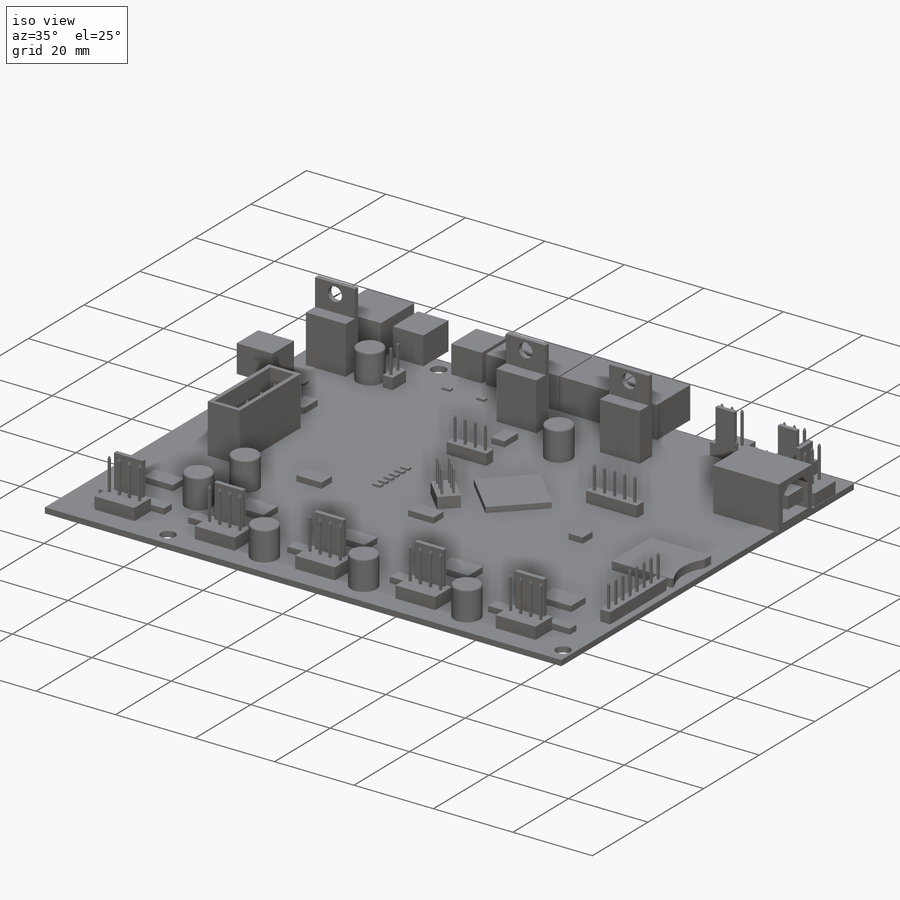
[diagram: iso view]
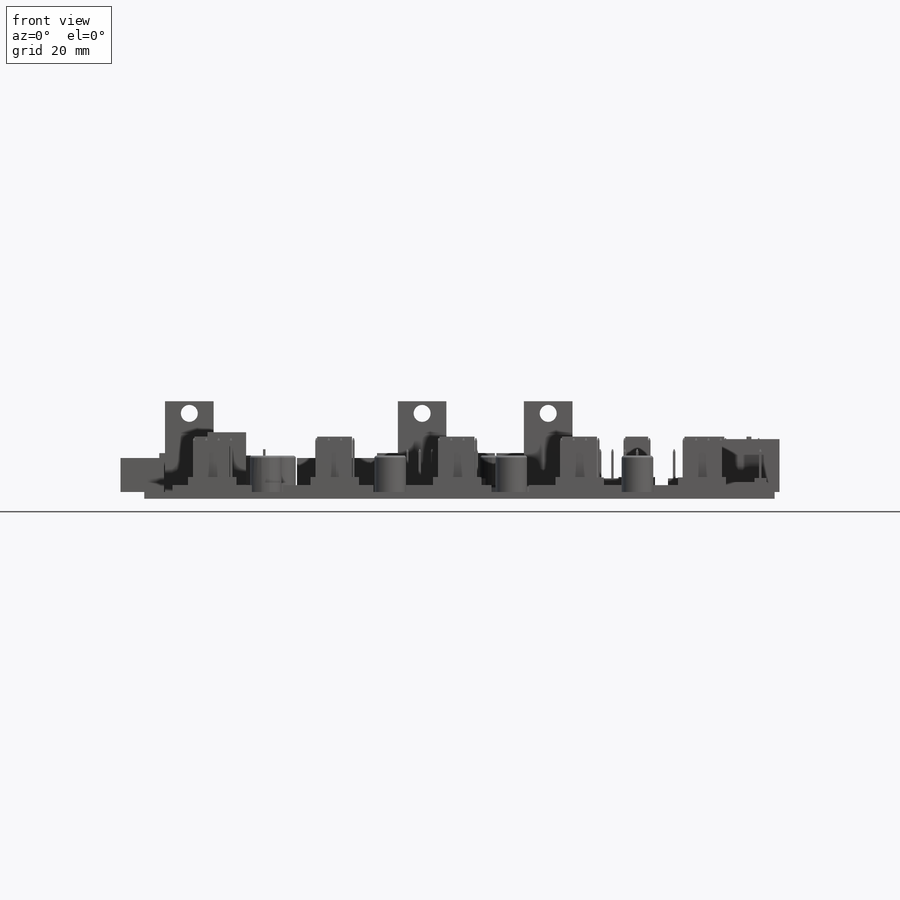
[diagram: front view]
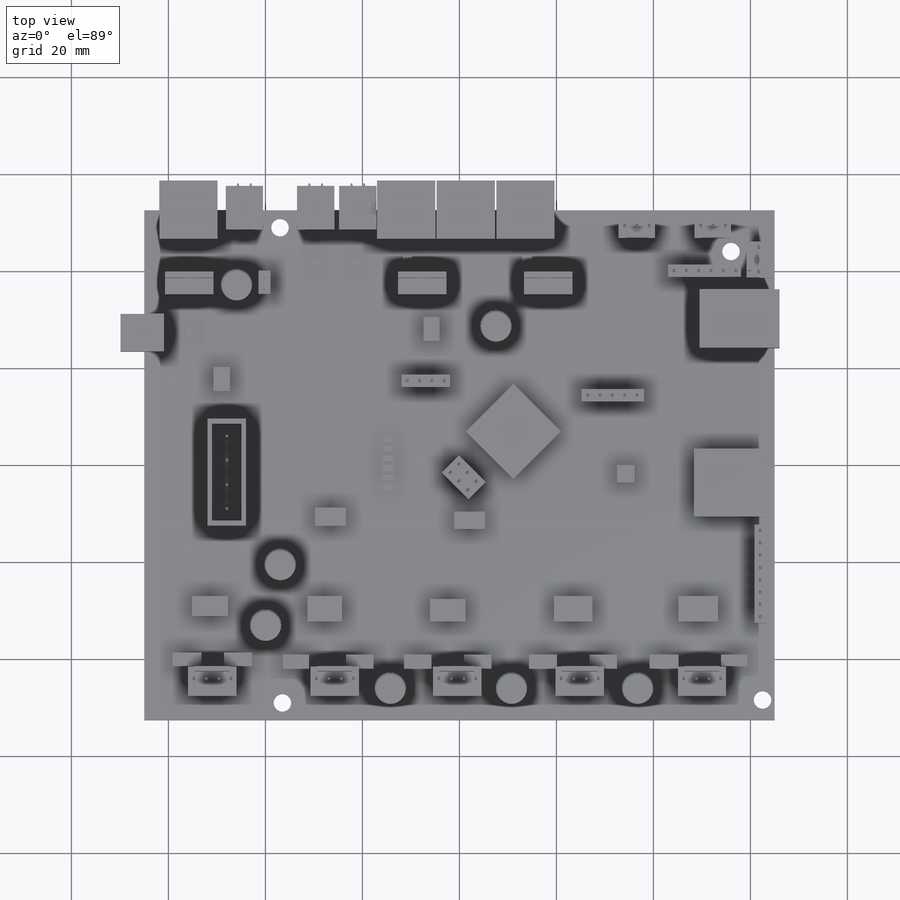
[diagram: top view]
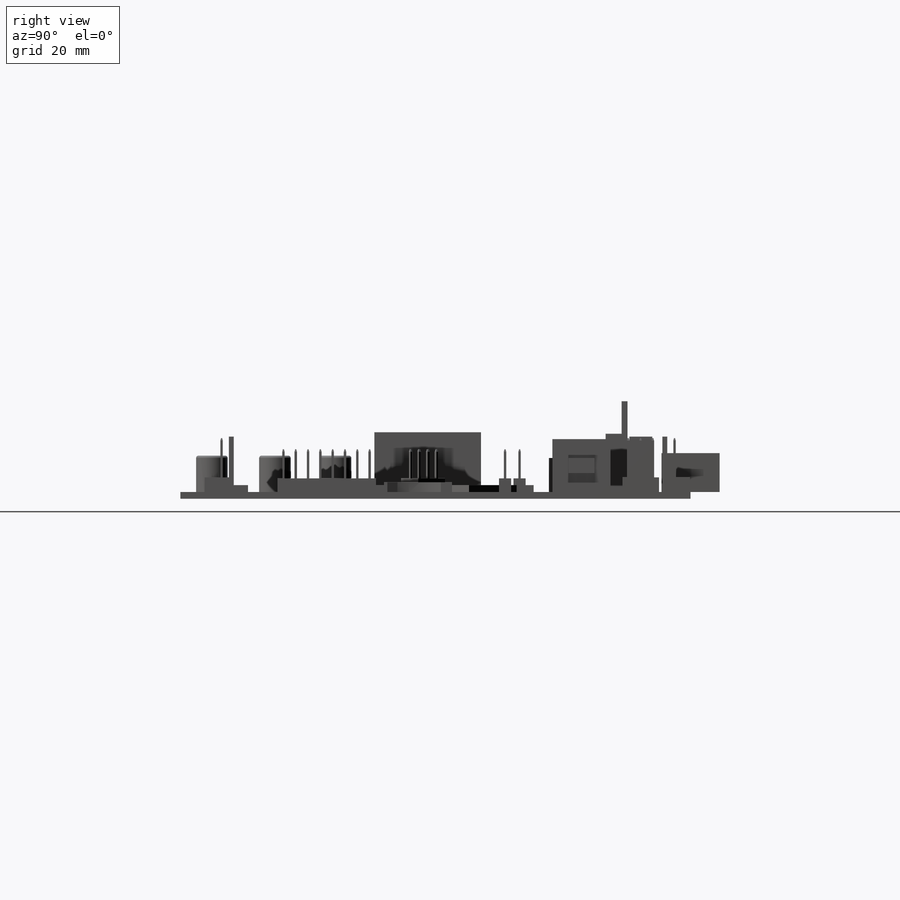
[diagram: right view]
SOLIDWORKS PART (.sldprt)
format: sldprt  version: not decoded by parser v0  size: 2,348,032 bytes
history: native  units: mm
features: sketch x26, extrude x19, cut_extrude x7, plane x3, fillet x2, chamfer x2, material x1 (+10 scaffold rows collapsed)
feature tree (70):
  scaffold x10  (default folders/planes/origin — collapsed)
  material  "Matériau <non spécifié>"
  plane  "Ebene vorne"
  plane  "Ebene oben"
  plane  "Ebene rechts"
  sketch  "Skizze1"  dims[D1=105.2mm D2=130.0mm]
  extrude  "Aufsatz-Linear austragen1"  Depth=1.4mm
  sketch  "Skizze2"
  extrude  "Aufsatz-Linear austragen2"  Depth=1.4mm
  sketch  "Skizze3"  dims[D1=6.5mm D2=6.5mm D3=6.5mm D4=6.5mm D5=6.5mm D6=6.5mm D7=6.5mm D8=28.3mm D9=26.0mm D10=25.0mm D11=25.0mm D12=3.0mm D13=12.5mm D14=19.5mm D15=6.5mm D16=6.5mm D17=6.5mm D18=15.5mm D19=24.0mm D20=19.0mm D21=57.5mm]
  extrude  "Aufsatz-Linear austragen3"  Depth=7.5mm
  fillet  "Verrundung1"  Radius=0.5mm
  sketch  "Skizze4"  dims[D1=4.5mm D2=10.0mm D3=4.3mm D4=13.0mm D5=38.0mm D6=16.0mm]
  extrude  "Aufsatz-Linear austragen4"  Depth=12mm
  sketch  "Skizze5"  dims[D1=1.2mm D2=1.2mm D3=1.2mm D4=0.01mm D5=0.01mm D6=0.01mm D7=0.01mm D8=0.01mm D9=0.01mm]
  extrude  "Aufsatz-Linear austragen5"  Depth=6.7mm
  sketch  "Skizze6"  dims[D1=3.5mm D2=3.5mm D3=3.5mm D4=2.5mm D5=2.5mm D6=2.5mm]
  cut_extrude  "Schnitt-Linear austragen1"  Depth=6.7mm
  sketch  "Skizze7"  dims[D1=8.0mm D2=22.0mm D3=13.0mm D4=40.0mm]
  extrude  "Aufsatz-Linear austragen6"  Depth=12.3mm
  sketch  "Skizze8"  dims[c1.D1=3.6mm c1.D2=3.6mm c1.D3=3.6mm c1.D4=3.6mm c1.D5=92.5mm c1.D6=93.0mm c1.D7=98.0mm c1.D8=99.0mm c1.D9=28.0mm c1.D10=~28.312266mm c2.D9=28.0mm c2.D10=3.6mm c2.D11=8.5mm c2.D12=2.5mm]
  cut_extrude  "Schnitt-Linear austragen2"  Depth=12.3mm
  sketch  "Skizze9"  dims[c1.D1=12.0mm c1.D2=12.0mm c1.D3=6.0mm c1.D4=3.1mm c1.D5=12.0mm c1.D6=12.0mm c1.D7=12.0mm c2.D7=270.0deg c3.D7=6.0mm c3.D8=48.0mm c3.D9=3.0]
  extrude  "Aufsatz-Linear austragen7"  Depth=8mm
  sketch  "Skizze10"  dims[D1=7.7mm D2=9.0mm D3=4.9mm D4=0.1mm D5=1.0mm D6=7.7mm D7=7.0mm D8=7.7mm D9=7.7mm D10=9.0mm D11=4.9mm D12=21.5mm]
  extrude  "Aufsatz-Linear austragen8"  Depth=7mm
  sketch  "Skizze11"  dims[D1=1.0mm D2=1.0mm D3=1.0mm D4=1.0mm D5=1.0mm D6=1.0mm D7=1.0mm]
  cut_extrude  "Schnitt-Linear austragen3"  Depth=7mm
  sketch  "Skizze12"  dims[D1=1.0mm]
  cut_extrude  "Schnitt-Linear austragen4"  Depth=7mm
  sketch  "Skizze13"  dims[D1=1.0mm]
  cut_extrude  "Schnitt-Linear austragen5"  Depth=11mm
  sketch  "Skizze14"  dims[D1=10.0mm D2=6.0mm D3=5.0mm D4=9.0mm D6=10.0mm D7=5.7mm D8=5.7mm D9=5.7mm D10=7.5mm D11=7.5mm D12=7.5mm D13=0.1mm D14=0.1mm D15=0.1mm D16=9.0mm D17=8.2mm D18=6.5mm D5=5.0]
  extrude  "Aufsatz-Linear austragen9"  Depth=3mm
  sketch  "Skizze15"  dims[D1=2.5mm D2=20.3mm D3=1.7mm D4=20.0mm D5=15.0mm D6=2.5mm D7=11.3mm D8=22.0mm D9=12.8mm D10=2.5mm D11=27.0mm D12=37.0mm D13=2.5mm D14=10.0mm D15=34.0mm D16=53.0mm D17=2.5mm D18=4.8mm D19=23.5mm D20=12.5mm D21=5.0mm D22=7.8mm D23=2.5mm D24=4.5mm]
  extrude  "Aufsatz-Linear austragen10"  Depth=2.8mm
  sketch  "Skizze16"  dims[c1.D1=7.2mm c1.D2=1.0mm c1.D4=25.0mm c1.D3=7.2mm c2.D4=1.0mm c2.D5=7.2mm c2.D6=7.2mm c2.D7=7.2mm c2.D8=1.0mm c2.D9=1.0mm c2.D10=1.0mm c2.D11=1.0mm c2.D12=1.0mm c2.D13=1.0mm c2.D14=4.7mm c2.D15=4.7mm c2.D16=4.7mm c2.D17=12.0mm c2.D18=16.5mm c2.D19=1.0mm c2.D20=16.5mm]
  extrude  "Aufsatz-Linear austragen11"  Depth=8.4mm
  sketch  "Skizze17"  dims[D1=12.0mm D2=16.5mm D3=1.0mm D4=16.5mm]
  extrude  "Aufsatz-Linear austragen12"  Depth=10.9mm
  sketch  "Skizze18"  dims[D5=20.0mm D1=14.0mm D2=15.2mm D3=1.5mm D4=42.0mm]
  extrude  "Aufsatz-Linear austragen13"  Depth=2mm
  sketch  "Skizze19"  dims[D1=0.5mm D2=0.5mm D3=1.0mm D4=0.5mm D5=0.5mm D7=2.54mm D8=1.27mm D9=0.5mm D10=0.5mm D11=1.27mm D13=2.54mm D14=0.5mm D15=0.5mm D16=1.27mm D18=2.54mm D19=0.5mm D20=0.5mm D21=1.27mm D23=2.54mm D24=0.5mm D25=0.5mm D26=1.27mm D27=1.27mm D29=2.54mm D6=4.0 D12=5.0 D17=6.0 D22=8.0 D28=3.0]
  extrude  "Aufsatz-Linear austragen14"  Depth=6mm
  sketch  "Skizze20"  dims[c1.D1=0.5mm c1.D2=0.5mm c1.D3=2.5mm c1.D5=2.54mm c1.D6=1.27mm c1.D8=25.0mm c1.D9=1.02mm c1.D10=7.62mm c1.D7=1.27mm c2.D8=1.27mm c2.D9=1.27mm c2.D10=1.27mm c2.D11=0.5mm c2.D12=2.5mm c2.D13=1.27mm c2.D14=1.27mm c2.D15=2.5mm c2.D16=1.27mm c2.D17=2.5mm c2.D18=0.5mm c2.D19=0.5mm c2.D21=2.54mm c2.D22=0.5mm c2.D23=0.5mm c2.D24=0.5mm c2.D26=2.54mm c2.D4=4.0 c2.D20=3.0 c2.D25=3.0]
  extrude  "Aufsatz-Linear austragen15"  Depth=8.1mm
  sketch  "Skizze21"  dims[c1.D1=3.5mm c1.D2=0.5mm c1.D3=0.5mm c1.D4=3.4mm c1.D5=3.4mm c1.D6=3.4mm c1.D7=3.4mm c2.D6=3.4mm c2.D8=0.5mm c2.D9=2.54mm c2.D10=0.5mm c2.D11=0.5mm c2.D12=2.54mm c2.D13=2.54mm]
  extrude  "Aufsatz-Linear austragen16"  Depth=6.5mm
  sketch  "Skizze22"  dims[D1=0.5mm D2=0.5mm D3=2.54mm]
  extrude  "Aufsatz-Linear austragen17"  Depth=6.5mm
  sketch  "Skizze23"  dims[D1=0.5mm D2=0.5mm D4=5.0mm D5=3.0mm D3=4.0]
  extrude  "Aufsatz-Linear austragen18"  Depth=9mm
  sketch  "Skizze24"  dims[D1=1.2mm D2=2.0mm D4=2.0mm D5=2.0mm D6=1.2mm D7=2.0mm D8=1.2mm D9=1.2mm D10=2.0mm D11=2.0mm D12=1.2mm D13=2.0mm D14=1.2mm D15=1.2mm D16=2.0mm D3=6.0]
  extrude  "Aufsatz-Linear austragen19"  Depth=0.5mm
  sketch  "Skizze25"  dims[D2=5.3mm D3=3.1mm D4=3.9mm D1=1.5mm]
  cut_extrude  "Schnitt-Linear austragen6"  Depth=8mm
  chamfer  "Fase1"  Distance=2mm Angle=45deg
  chamfer  "Fase2"  Distance=0.5mm Angle=15deg
  sketch  "Skizze26"  dims[c1.D1=~1.005331mm c1.D2=~5.323454mm c2.D1=~0.500601mm c2.D2=~0.591816mm c3.D1=1.0mm c3.D2=1.0mm c3.D3=~1.027418mm c3.D4=0.8687mm c3.D5=0.7435mm c4.D4=1.0mm c4.D5=1.0mm c4.D6=~0.804074mm c4.D7=~0.75393mm c5.D6=1.0mm c5.D7=1.0mm c5.D8=~0.809618mm c5.D9=~0.662414mm c6.D8=1.0mm c6.D9=1.0mm c6.D10=~0.778982mm c6.D11=~0.814935mm c7.D10=1.0mm c7.D11=1.0mm c7.D12=~0.847414mm c7.D13=~1.18192mm c8.D12=1.0mm c8.D13=1.0mm c8.D14=~0.706733mm c8.D15=~0.752824mm c9.D14=1.0mm c9.1=1.0mm c9.D3=6.0]
  cut_extrude  "Schnitt-Linear austragen7"  Depth=0.2mm
  fillet  "Verrundung2"  Radius=0.5mm
decode coverage: 55 of 56 modeling features carry decoded parameters
note: ~ marks probable driven/reference dimensions
note: suppression state not decoded; provenance and decode notes live in map.json
